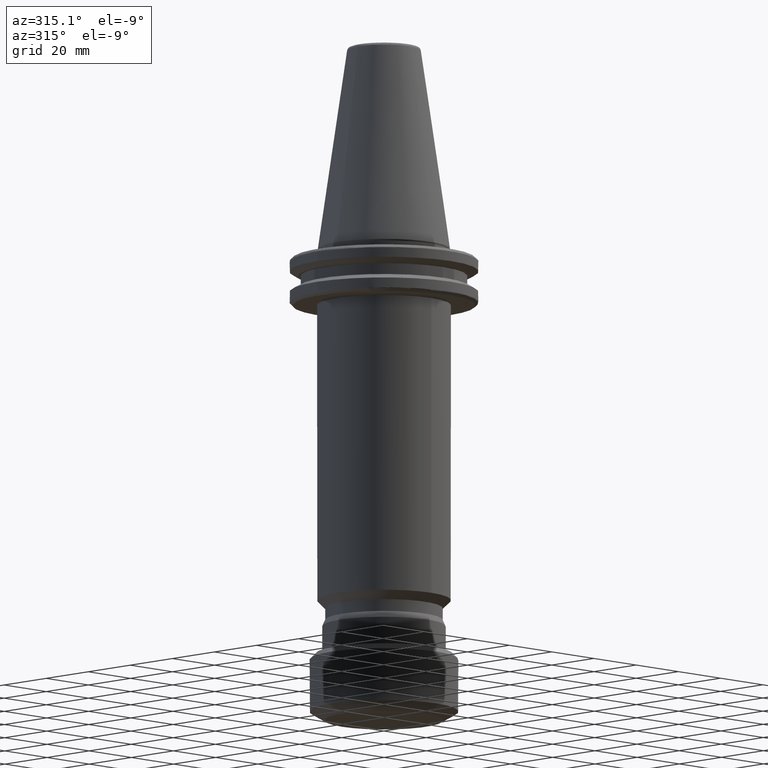
[diagram: clean part render]
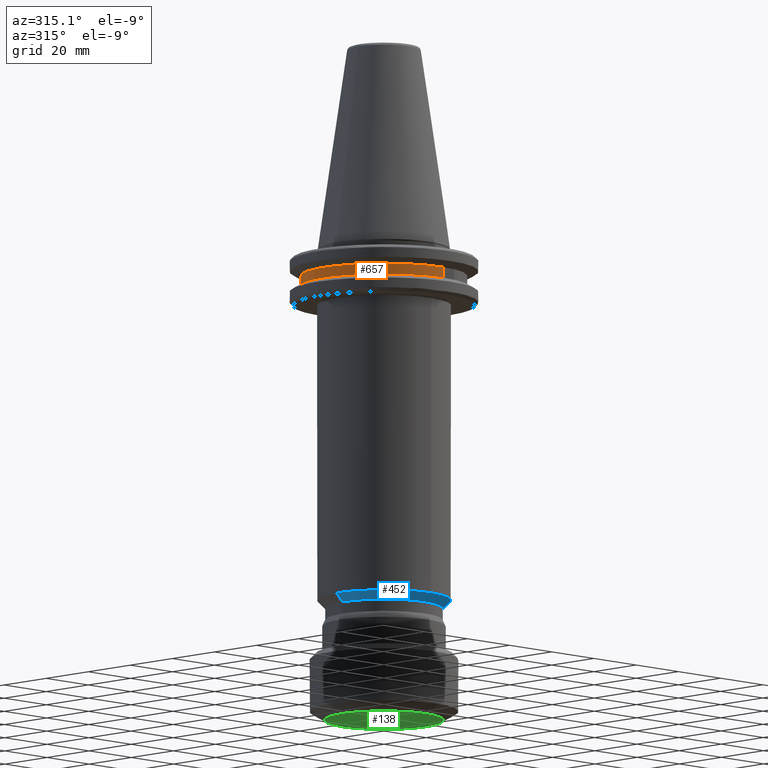
[diagram: same view with three faces highlighted in distinct colors, each labeled with its STEP entity id]
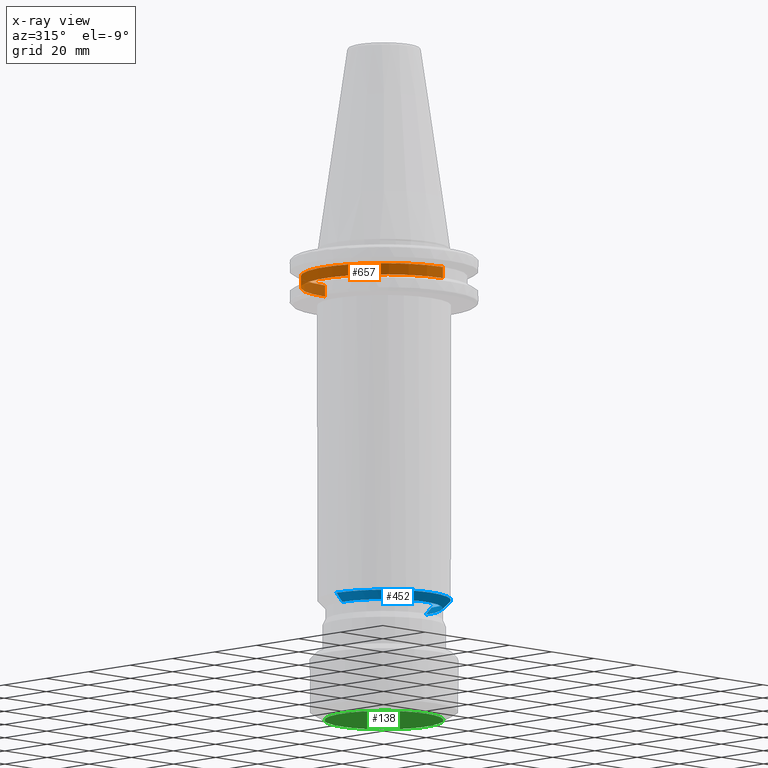
[diagram: x-ray of the same camera — body ghosted, the three highlighted faces saturated]
A machine part, auxiliary view with three faces highlighted in distinct colors.
The next image is the same camera in x-ray (body ghosted, the three faces saturated) — at least one of them is partly hidden behind the body in this view.
Their STEP definitions:

[orange] entity #657 — the highlighted cylindrical surface (partial cylindrical patch) has radius 28 mm, axis along (0, -0, 1).
#34 = VERTEX_POINT ( 'NONE', #1103 ) ;
#80 = ORIENTED_EDGE ( 'NONE', *, *, #915, .T. ) ;
#140 = LINE ( 'NONE', #1075, #2139 ) ;
#184 = DIRECTION ( 'NONE',  ( 0.0000000000000000000, -3.097720492815727700E-017, 1.000000000000000000 ) ) ;
#332 = FACE_OUTER_BOUND ( 'NONE', #1984, .T. ) ;
#380 = DIRECTION ( 'NONE',  ( -0.0000000000000000000, 3.097720492815727700E-017, -1.000000000000000000 ) ) ;
#394 = DIRECTION ( 'NONE',  ( 0.0000000000000000000, -3.097720492815727700E-017, 1.000000000000000000 ) ) ;
#549 = VERTEX_POINT ( 'NONE', #2736 ) ;
#564 = DIRECTION ( 'NONE',  ( 0.0000000000000000000, -1.000000000000000000, -6.195440985631454100E-017 ) ) ;
#579 = CARTESIAN_POINT ( 'NONE',  ( 0.0000000000000000000, -1.177133787269977100E-016, -9.199999999999999300 ) ) ;
#657 = ADVANCED_FACE ( 'NONE', ( #332 ), #957, .T. ) ;
#724 = AXIS2_PLACEMENT_3D ( 'NONE', #3333, #394, #3275 ) ;
#813 = CARTESIAN_POINT ( 'NONE',  ( 3.429011037612589300E-015, 28.00000000000000000, -13.00000000000000200 ) ) ;
#915 = EDGE_CURVE ( 'NONE', #3119, #34, #2150, .T. ) ;
#943 = ORIENTED_EDGE ( 'NONE', *, *, #2866, .T. ) ;
#957 = CYLINDRICAL_SURFACE ( 'NONE', #724, 28.00000000000000000 ) ;
#1075 = CARTESIAN_POINT ( 'NONE',  ( 0.0000000000000000000, -28.00000000000000000, -13.00000000000000500 ) ) ;
#1103 = CARTESIAN_POINT ( 'NONE',  ( 3.429011037612589300E-015, 28.00000000000000000, -9.199999999999999300 ) ) ;
#1121 = ORIENTED_EDGE ( 'NONE', *, *, #2773, .T. ) ;
#1192 = VERTEX_POINT ( 'NONE', #813 ) ;
#1199 = AXIS2_PLACEMENT_3D ( 'NONE', #579, #380, #564 ) ;
#1533 = CIRCLE ( 'NONE', #2898, 28.00000000000000000 ) ;
#1739 = CARTESIAN_POINT ( 'NONE',  ( 0.0000000000000000000, -7.947095841366504100E-032, -13.00000000000000200 ) ) ;
#1916 = EDGE_CURVE ( 'NONE', #1192, #34, #2749, .T. ) ;
#1984 = EDGE_LOOP ( 'NONE', ( #3316, #1121, #943, #80 ) ) ;
#2000 = DIRECTION ( 'NONE',  ( 0.0000000000000000000, -1.000000000000000000, -6.195440985631454100E-017 ) ) ;
#2139 = VECTOR ( 'NONE', #2343, 1000.000000000000000 ) ;
#2150 = CIRCLE ( 'NONE', #1199, 28.00000000000000000 ) ;
#2343 = DIRECTION ( 'NONE',  ( 0.0000000000000000000, -3.097720492815727700E-017, 1.000000000000000000 ) ) ;
#2404 = CARTESIAN_POINT ( 'NONE',  ( 0.0000000000000000000, -28.00000000000000000, -9.200000000000001100 ) ) ;
#2673 = VECTOR ( 'NONE', #2729, 1000.000000000000000 ) ;
#2729 = DIRECTION ( 'NONE',  ( 0.0000000000000000000, -3.097720492815727700E-017, 1.000000000000000000 ) ) ;
#2736 = CARTESIAN_POINT ( 'NONE',  ( 0.0000000000000000000, -28.00000000000000000, -13.00000000000000400 ) ) ;
#2749 = LINE ( 'NONE', #2988, #2673 ) ;
#2773 = EDGE_CURVE ( 'NONE', #1192, #549, #1533, .T. ) ;
#2866 = EDGE_CURVE ( 'NONE', #549, #3119, #140, .T. ) ;
#2898 = AXIS2_PLACEMENT_3D ( 'NONE', #1739, #184, #2000 ) ;
#2988 = CARTESIAN_POINT ( 'NONE',  ( 3.429011037612589300E-015, 28.00000000000000000, -13.00000000000000200 ) ) ;
#3119 = VERTEX_POINT ( 'NONE', #2404 ) ;
#3275 = DIRECTION ( 'NONE',  ( 0.0000000000000000000, -1.000000000000000000, -6.195440985631454100E-017 ) ) ;
#3316 = ORIENTED_EDGE ( 'NONE', *, *, #1916, .F. ) ;
#3333 = CARTESIAN_POINT ( 'NONE',  ( 0.0000000000000000000, 0.0000000000000000000, -13.00000000000000400 ) ) ;

[blue] entity #452 — the highlighted conical surface has half-angle 45 deg.
#13 = CARTESIAN_POINT ( 'NONE',  ( 0.0000000000000000000, 2.353914376473288200E-029, -119.2500000000001000 ) ) ;
#194 = ORIENTED_EDGE ( 'NONE', *, *, #1913, .F. ) ;
#233 = DIRECTION ( 'NONE',  ( 0.0000000000000000000, -3.083952846180990300E-016, 1.000000000000000000 ) ) ;
#260 = DIRECTION ( 'NONE',  ( 0.0000000000000000000, -1.000000000000000000, 0.0000000000000000000 ) ) ;
#452 = ADVANCED_FACE ( 'NONE', ( #1886 ), #1132, .T. ) ;
#455 = ORIENTED_EDGE ( 'NONE', *, *, #1210, .F. ) ;
#498 = LINE ( 'NONE', #803, #1884 ) ;
#517 = CARTESIAN_POINT ( 'NONE',  ( -19.75000000000000000, 2.418677428316022700E-015, -122.0000000000000000 ) ) ;
#533 = VERTEX_POINT ( 'NONE', #1484 ) ;
#674 = VERTEX_POINT ( 'NONE', #2498 ) ;
#803 = CARTESIAN_POINT ( 'NONE',  ( 22.49999999999995700, 0.0000000000000000000, -119.2500000000000600 ) ) ;
#842 = DIRECTION ( 'NONE',  ( 0.7071067811865489100, 0.0000000000000000000, 0.7071067811865462400 ) ) ;
#989 = CARTESIAN_POINT ( 'NONE',  ( 19.75000000000000000, 0.0000000000000000000, -122.0000000000000000 ) ) ;
#1019 = VERTEX_POINT ( 'NONE', #517 ) ;
#1090 = DIRECTION ( 'NONE',  ( 0.0000000000000000000, -1.000000000000000000, 0.0000000000000000000 ) ) ;
#1099 = DIRECTION ( 'NONE',  ( 0.0000000000000000000, -3.083952846180990300E-016, 1.000000000000000000 ) ) ;
#1112 = CARTESIAN_POINT ( 'NONE',  ( 0.0000000000000000000, 2.353914376473288200E-029, -119.2500000000001000 ) ) ;
#1132 = CONICAL_SURFACE ( 'NONE', #1773, 22.49999999999995700, 0.7853981633974501700 ) ;
#1150 = CARTESIAN_POINT ( 'NONE',  ( 0.0000000000000000000, 0.0000000000000000000, -119.2500000000000600 ) ) ;
#1210 = EDGE_CURVE ( 'NONE', #533, #674, #1586, .T. ) ;
#1234 = ORIENTED_EDGE ( 'NONE', *, *, #1580, .F. ) ;
#1289 = CIRCLE ( 'NONE', #1728, 22.50000000000000000 ) ;
#1316 = CARTESIAN_POINT ( 'NONE',  ( 0.0000000000000000000, 0.0000000000000000000, -122.0000000000000000 ) ) ;
#1329 = VERTEX_POINT ( 'NONE', #2347 ) ;
#1400 = VECTOR ( 'NONE', #3241, 999.9999999999998900 ) ;
#1484 = CARTESIAN_POINT ( 'NONE',  ( -22.49999999999990100, 2.755455298081532600E-015, -119.2500000000001000 ) ) ;
#1511 = EDGE_LOOP ( 'NONE', ( #194, #2842, #2589, #1234, #455 ) ) ;
#1565 = DIRECTION ( 'NONE',  ( 1.000000000000000000, 0.0000000000000000000, 0.0000000000000000000 ) ) ;
#1580 = EDGE_CURVE ( 'NONE', #674, #1329, #1289, .T. ) ;
#1586 = CIRCLE ( 'NONE', #2670, 22.50000000000000000 ) ;
#1635 = DIRECTION ( 'NONE',  ( 1.000000000000000000, 0.0000000000000000000, 0.0000000000000000000 ) ) ;
#1642 = EDGE_CURVE ( 'NONE', #2822, #1329, #498, .T. ) ;
#1728 = AXIS2_PLACEMENT_3D ( 'NONE', #1112, #1099, #1090 ) ;
#1773 = AXIS2_PLACEMENT_3D ( 'NONE', #1150, #2764, #1635 ) ;
#1884 = VECTOR ( 'NONE', #842, 999.9999999999998900 ) ;
#1886 = FACE_OUTER_BOUND ( 'NONE', #1511, .T. ) ;
#1913 = EDGE_CURVE ( 'NONE', #1019, #533, #2833, .T. ) ;
#1967 = CARTESIAN_POINT ( 'NONE',  ( -22.49999999999995700, 2.755455298081539300E-015, -119.2500000000000600 ) ) ;
#2036 = AXIS2_PLACEMENT_3D ( 'NONE', #1316, #3085, #1565 ) ;
#2347 = CARTESIAN_POINT ( 'NONE',  ( 22.49999999999990100, 0.0000000000000000000, -119.2500000000001000 ) ) ;
#2384 = CIRCLE ( 'NONE', #2036, 19.75000000000000000 ) ;
#2498 = CARTESIAN_POINT ( 'NONE',  ( 0.0000000000000000000, -22.50000000000000000, -119.2500000000001000 ) ) ;
#2589 = ORIENTED_EDGE ( 'NONE', *, *, #1642, .T. ) ;
#2670 = AXIS2_PLACEMENT_3D ( 'NONE', #13, #233, #260 ) ;
#2692 = EDGE_CURVE ( 'NONE', #1019, #2822, #2384, .T. ) ;
#2764 = DIRECTION ( 'NONE',  ( 0.0000000000000000000, -0.0000000000000000000, 1.000000000000000000 ) ) ;
#2822 = VERTEX_POINT ( 'NONE', #989 ) ;
#2833 = LINE ( 'NONE', #1967, #1400 ) ;
#2842 = ORIENTED_EDGE ( 'NONE', *, *, #2692, .T. ) ;
#3085 = DIRECTION ( 'NONE',  ( 0.0000000000000000000, 0.0000000000000000000, 1.000000000000000000 ) ) ;
#3241 = DIRECTION ( 'NONE',  ( -0.7071067811865489100, 8.659560562354950100E-017, 0.7071067811865462400 ) ) ;

[green] entity #138 — the highlighted planar face has unit normal (0, 0, -1).
#5 = DIRECTION ( 'NONE',  ( 0.0000000000000000000, -1.000000000000000000, 0.0000000000000000000 ) ) ;
#133 = DIRECTION ( 'NONE',  ( -1.000000000000000000, 0.0000000000000000000, -0.0000000000000000000 ) ) ;
#138 = ADVANCED_FACE ( 'NONE', ( #1094 ), #2627, .T. ) ;
#141 = DIRECTION ( 'NONE',  ( 0.0000000000000000000, 0.0000000000000000000, -1.000000000000000000 ) ) ;
#195 = VERTEX_POINT ( 'NONE', #2856 ) ;
#314 = CIRCLE ( 'NONE', #2551, 19.99999999999998900 ) ;
#856 = VERTEX_POINT ( 'NONE', #1174 ) ;
#870 = EDGE_LOOP ( 'NONE', ( #2088, #1918 ) ) ;
#1094 = FACE_OUTER_BOUND ( 'NONE', #870, .T. ) ;
#1165 = AXIS2_PLACEMENT_3D ( 'NONE', #2891, #141, #133 ) ;
#1174 = CARTESIAN_POINT ( 'NONE',  ( 0.0000000000000000000, -19.99999999999998900, -160.0000000000000300 ) ) ;
#1399 = EDGE_CURVE ( 'NONE', #195, #856, #2018, .T. ) ;
#1577 = DIRECTION ( 'NONE',  ( 0.0000000000000000000, -5.551115123125766900E-016, 1.000000000000000000 ) ) ;
#1627 = AXIS2_PLACEMENT_3D ( 'NONE', #3224, #3213, #3201 ) ;
#1918 = ORIENTED_EDGE ( 'NONE', *, *, #1399, .F. ) ;
#2018 = CIRCLE ( 'NONE', #1627, 19.99999999999998900 ) ;
#2088 = ORIENTED_EDGE ( 'NONE', *, *, #2733, .F. ) ;
#2551 = AXIS2_PLACEMENT_3D ( 'NONE', #3098, #1577, #5 ) ;
#2627 = PLANE ( 'NONE',  #1165 ) ;
#2733 = EDGE_CURVE ( 'NONE', #856, #195, #314, .T. ) ;
#2856 = CARTESIAN_POINT ( 'NONE',  ( 2.755455298081544000E-015, 19.99999999999998900, -160.0000000000000300 ) ) ;
#2891 = CARTESIAN_POINT ( 'NONE',  ( 20.23999999999999800, -20.23999999999999800, -160.0000000000000000 ) ) ;
#3098 = CARTESIAN_POINT ( 'NONE',  ( 0.0000000000000000000, -1.322545706283594100E-016, -160.0000000000000300 ) ) ;
#3201 = DIRECTION ( 'NONE',  ( 0.0000000000000000000, -1.000000000000000000, 0.0000000000000000000 ) ) ;
#3213 = DIRECTION ( 'NONE',  ( 0.0000000000000000000, -5.551115123125766900E-016, 1.000000000000000000 ) ) ;
#3224 = CARTESIAN_POINT ( 'NONE',  ( 0.0000000000000000000, -1.322545706283594100E-016, -160.0000000000000300 ) ) ;